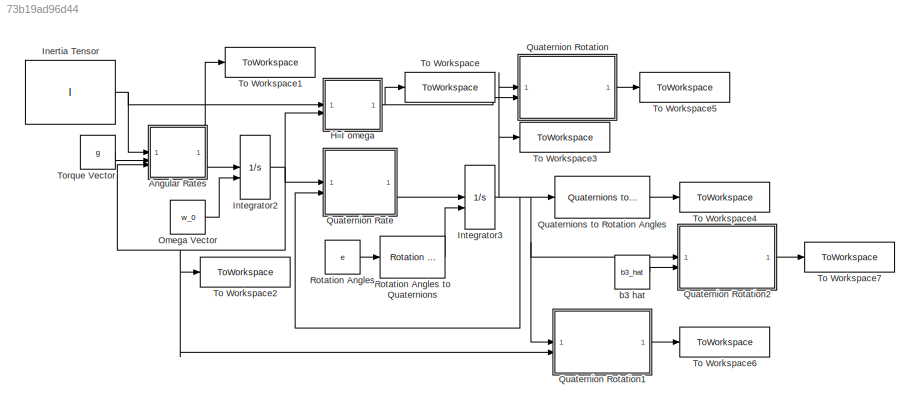
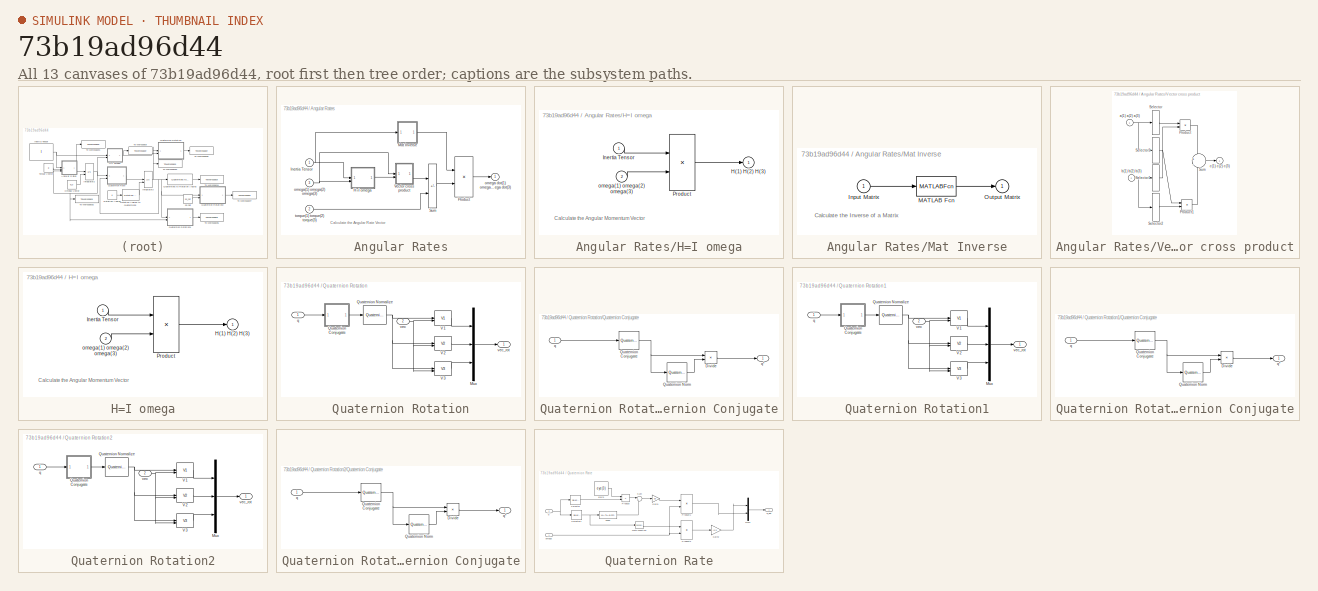
[diagram: thumbnail index - all 13 canvases of the model, root first then tree order]
MODEL slx_73b19ad96d44
KIND model
CONFIG AbsTol = auto
CONFIG EnableMultiTasking = on
CONFIG FixedStep = 0.01
CONFIG MaxStep = 0.01
CONFIG MinStep = auto
CONFIG RelTol = 1e-3
CONFIG SampleTimeConstraint = Unconstrained
CONFIG SolverName = FixedStepAuto
CONFIG StartTime = 0.0
CONFIG StopTime = 45
BLOCK [SubSystem] Angular Rates
BLOCK [SubSystem] Angular Rates/H=I omega
BLOCK [Outport] Angular Rates/H=I omega/H(1) H(2) H(3)
  InitialOutput = 0
BLOCK [Inport] Angular Rates/H=I omega/Inertia Tensor
BLOCK [Product] Angular Rates/H=I omega/Product
  InputSameDT = on
  Multiplication = Matrix(*)
  OutDataTypeStr = Inherit: Same as first input
  RndMeth = Zero
  SaturateOnIntegerOverflow = on
BLOCK [Inport] Angular Rates/H=I omega/omega(1) omega(2) omega(3)
  Port = 2
BLOCK [Inport] Angular Rates/Inertia Tensor
BLOCK [SubSystem] Angular Rates/Mat Inverse
BLOCK [Inport] Angular Rates/Mat Inverse/Input Matrix
BLOCK [MATLABFcn] Angular Rates/Mat Inverse/MATLAB Fcn
  MATLABFcn = inv([u(1,1) u(1,2) u(1,3);u(2,1) u(2,2) u(2,3);u(3,1) u(3,2) u(3,3)])
  Output1D = off
BLOCK [Outport] Angular Rates/Mat Inverse/Output Matrix
  InitialOutput = 0
BLOCK [Product] Angular Rates/Product
  InputSameDT = on
  Multiplication = Matrix(*)
  OutDataTypeStr = Inherit: Same as first input
  RndMeth = Zero
  SaturateOnIntegerOverflow = on
BLOCK [Sum] Angular Rates/Sum
  IconShape = rectangular
  InputSameDT = on
  Inputs = -+
  OutDataTypeStr = Inherit: Same as first input
  SaturateOnIntegerOverflow = on
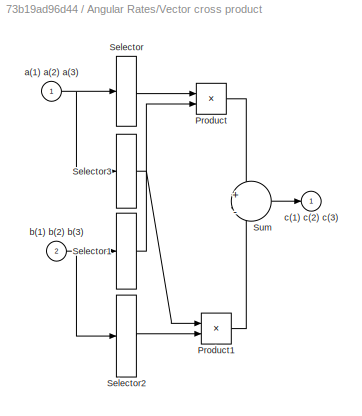
BLOCK [SubSystem] Angular Rates/Vector cross product
BLOCK [Product] Angular Rates/Vector cross product/Product
  InputSameDT = on
  OutDataTypeStr = Inherit: Same as first input
  RndMeth = Zero
  SaturateOnIntegerOverflow = on
BLOCK [Product] Angular Rates/Vector cross product/Product1
  InputSameDT = on
  OutDataTypeStr = Inherit: Same as first input
  RndMeth = Zero
  SaturateOnIntegerOverflow = on
BLOCK [Selector] Angular Rates/Vector cross product/Selector
  IndexOptions = Index vector (dialog)
  Indices = [2 3 1]
  InputPortWidth = 3
  OutputSizes = 1
BLOCK [Selector] Angular Rates/Vector cross product/Selector1
  IndexOptions = Index vector (dialog)
  Indices = [3 1 2]
  InputPortWidth = 3
  OutputSizes = 1
BLOCK [Selector] Angular Rates/Vector cross product/Selector2
  IndexOptions = Index vector (dialog)
  Indices = [2 3 1]
  InputPortWidth = 3
  OutputSizes = 1
BLOCK [Selector] Angular Rates/Vector cross product/Selector3
  IndexOptions = Index vector (dialog)
  Indices = [3 1 2]
  InputPortWidth = 3
  OutputSizes = 1
BLOCK [Sum] Angular Rates/Vector cross product/Sum
  InputSameDT = on
  Inputs = +|-
  OutDataTypeStr = Inherit: Same as first input
  SaturateOnIntegerOverflow = on
BLOCK [Inport] Angular Rates/Vector cross product/a(1) a(2) a(3)
BLOCK [Inport] Angular Rates/Vector cross product/b(1) b(2) b(3)
  Port = 2
BLOCK [Outport] Angular Rates/Vector cross product/c(1) c(2) c(3)
  InitialOutput = 0
BLOCK [Outport] Angular Rates/omega dot(1) omega dot(2) omega dot(3)
  InitialOutput = 0
BLOCK [Inport] Angular Rates/omega(1) omega(2) omega(3)
  Port = 3
BLOCK [Inport] Angular Rates/torque(1) torque(2) torque(3)
  Port = 2
BLOCK [SubSystem] H=I omega
BLOCK [Outport] H=I omega/H(1) H(2) H(3)
  InitialOutput = 0
BLOCK [Inport] H=I omega/Inertia Tensor
BLOCK [Product] H=I omega/Product
  InputSameDT = on
  Multiplication = Matrix(*)
  OutDataTypeStr = Inherit: Same as first input
  RndMeth = Zero
  SaturateOnIntegerOverflow = on
BLOCK [Inport] H=I omega/omega(1) omega(2) omega(3)
  Port = 2
BLOCK [Constant] Inertia Tensor
  Value = I
  VectorParams1D = off
BLOCK [Integrator] Integrator2
  InitialCondition = [0;0;0]
  InitialConditionSource = external
BLOCK [Integrator] Integrator3
  InitialCondition = [0;0;0]
  InitialConditionSource = external
BLOCK [Constant] Omega Vector
  Value = w_0
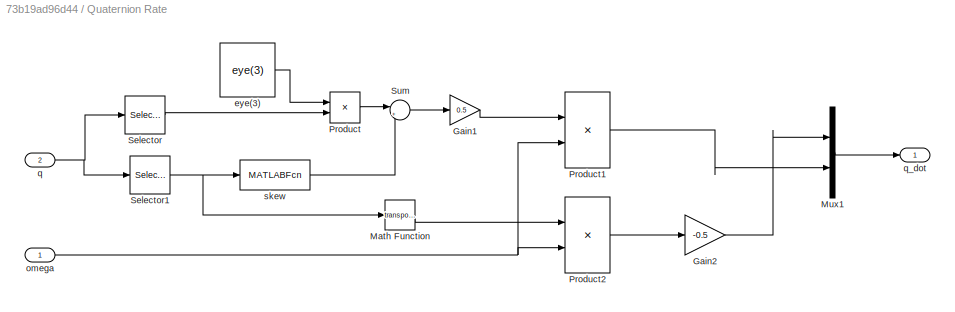
BLOCK [SubSystem] Quaternion Rate
BLOCK [Gain] Quaternion Rate/Gain1
  Gain = 0.5
BLOCK [Gain] Quaternion Rate/Gain2
  Gain = -0.5
BLOCK [Math] Quaternion Rate/Math Function
  Operator = transpose
BLOCK [Mux] Quaternion Rate/Mux1
  DisplayOption = bar
  Inputs = 2
BLOCK [Product] Quaternion Rate/Product
BLOCK [Product] Quaternion Rate/Product1
  Multiplication = Matrix(*)
BLOCK [Product] Quaternion Rate/Product2
  Multiplication = Matrix(*)
BLOCK [Selector] Quaternion Rate/Selector
  IndexOptions = Index vector (dialog)
  Indices = [1]
  InputPortWidth = 4
  OutputSizes = 1
BLOCK [Selector] Quaternion Rate/Selector1
  IndexOptions = Index vector (dialog)
  Indices = [2 3 4]
  InputPortWidth = 4
  OutputSizes = 1
BLOCK [Sum] Quaternion Rate/Sum
  Inputs = |++
BLOCK [Constant] Quaternion Rate/eye(3)
  Value = eye(3)
BLOCK [Inport] Quaternion Rate/omega
BLOCK [Inport] Quaternion Rate/q
  Port = 2
BLOCK [Outport] Quaternion Rate/q_dot
BLOCK [MATLABFcn] Quaternion Rate/skew
  MATLABFcn = [0,-u(3),u(2);u(3),0,-u(1);-u(2),u(1),0]
  Output1D = off
BLOCK [SubSystem] Quaternion Rotation
BLOCK [Mux] Quaternion Rotation/Mux
  DisplayOption = bar
  Inputs = 3
BLOCK [SubSystem] Quaternion Rotation/Quaternion Conjugate
  ShowPortLabels = FromPortBlockName
BLOCK [Product] Quaternion Rotation/Quaternion Conjugate/Divide
  Inputs = */
BLOCK [Reference] Quaternion Rotation/Quaternion Conjugate/Quaternion Conjugate  REF=aerolibutil/Quaternion
Conjugate
  SourceBlock = aerolibutil/Quaternion\nConjugate
  SourceType = Quaternion Conjugate
BLOCK [Reference] Quaternion Rotation/Quaternion Conjugate/Quaternion Norm  REF=sharedutil/Quaternion
Norm
  SourceBlock = sharedutil/Quaternion\nNorm
  SourceType = Quaternion Norm
BLOCK [Inport] Quaternion Rotation/Quaternion Conjugate/q
BLOCK [Outport] Quaternion Rotation/Quaternion Conjugate/q*
BLOCK [Reference] Quaternion Rotation/Quaternion Normalize  REF=sharedutil/Quaternion
Normalize
  SourceBlock = sharedutil/Quaternion\nNormalize
  SourceType = Quaternion Normalize
BLOCK [Reference] Quaternion Rotation/V1  REF=aerolibutil/Quaternion
Rotation/V1
  SourceBlock = aerolibutil/Quaternion\nRotation/V1
  SourceType = SubSystem
BLOCK [Reference] Quaternion Rotation/V2  REF=aerolibutil/Quaternion
Rotation/V2
  SourceBlock = aerolibutil/Quaternion\nRotation/V2
  SourceType = SubSystem
BLOCK [Reference] Quaternion Rotation/V3  REF=aerolibutil/Quaternion
Rotation/V3
  SourceBlock = aerolibutil/Quaternion\nRotation/V3
  SourceType = SubSystem
BLOCK [Inport] Quaternion Rotation/q
  Unit = 1
BLOCK [Inport] Quaternion Rotation/vec
  Port = 2
BLOCK [Outport] Quaternion Rotation/vec_rot
  VectorParamsAs1DForOutWhenUnconnected = off
BLOCK [SubSystem] Quaternion Rotation1
BLOCK [Mux] Quaternion Rotation1/Mux
  DisplayOption = bar
  Inputs = 3
BLOCK [SubSystem] Quaternion Rotation1/Quaternion Conjugate
  ShowPortLabels = FromPortBlockName
BLOCK [Product] Quaternion Rotation1/Quaternion Conjugate/Divide
  Inputs = */
BLOCK [Reference] Quaternion Rotation1/Quaternion Conjugate/Quaternion Conjugate  REF=aerolibutil/Quaternion
Conjugate
  SourceBlock = aerolibutil/Quaternion\nConjugate
  SourceType = Quaternion Conjugate
BLOCK [Reference] Quaternion Rotation1/Quaternion Conjugate/Quaternion Norm  REF=sharedutil/Quaternion
Norm
  SourceBlock = sharedutil/Quaternion\nNorm
  SourceType = Quaternion Norm
BLOCK [Inport] Quaternion Rotation1/Quaternion Conjugate/q
BLOCK [Outport] Quaternion Rotation1/Quaternion Conjugate/q*
BLOCK [Reference] Quaternion Rotation1/Quaternion Normalize  REF=sharedutil/Quaternion
Normalize
  SourceBlock = sharedutil/Quaternion\nNormalize
  SourceType = Quaternion Normalize
BLOCK [Reference] Quaternion Rotation1/V1  REF=aerolibutil/Quaternion
Rotation/V1
  SourceBlock = aerolibutil/Quaternion\nRotation/V1
  SourceType = SubSystem
BLOCK [Reference] Quaternion Rotation1/V2  REF=aerolibutil/Quaternion
Rotation/V2
  SourceBlock = aerolibutil/Quaternion\nRotation/V2
  SourceType = SubSystem
BLOCK [Reference] Quaternion Rotation1/V3  REF=aerolibutil/Quaternion
Rotation/V3
  SourceBlock = aerolibutil/Quaternion\nRotation/V3
  SourceType = SubSystem
BLOCK [Inport] Quaternion Rotation1/q
  Unit = 1
BLOCK [Inport] Quaternion Rotation1/vec
  Port = 2
BLOCK [Outport] Quaternion Rotation1/vec_rot
  VectorParamsAs1DForOutWhenUnconnected = off
BLOCK [SubSystem] Quaternion Rotation2
BLOCK [Mux] Quaternion Rotation2/Mux
  DisplayOption = bar
  Inputs = 3
BLOCK [SubSystem] Quaternion Rotation2/Quaternion Conjugate
  ShowPortLabels = FromPortBlockName
BLOCK [Product] Quaternion Rotation2/Quaternion Conjugate/Divide
  Inputs = */
BLOCK [Reference] Quaternion Rotation2/Quaternion Conjugate/Quaternion Conjugate  REF=aerolibutil/Quaternion
Conjugate
  SourceBlock = aerolibutil/Quaternion\nConjugate
  SourceType = Quaternion Conjugate
BLOCK [Reference] Quaternion Rotation2/Quaternion Conjugate/Quaternion Norm  REF=sharedutil/Quaternion
Norm
  SourceBlock = sharedutil/Quaternion\nNorm
  SourceType = Quaternion Norm
BLOCK [Inport] Quaternion Rotation2/Quaternion Conjugate/q
BLOCK [Outport] Quaternion Rotation2/Quaternion Conjugate/q*
BLOCK [Reference] Quaternion Rotation2/Quaternion Normalize  REF=sharedutil/Quaternion
Normalize
  SourceBlock = sharedutil/Quaternion\nNormalize
  SourceType = Quaternion Normalize
BLOCK [Reference] Quaternion Rotation2/V1  REF=aerolibutil/Quaternion
Rotation/V1
  SourceBlock = aerolibutil/Quaternion\nRotation/V1
  SourceType = SubSystem
BLOCK [Reference] Quaternion Rotation2/V2  REF=aerolibutil/Quaternion
Rotation/V2
  SourceBlock = aerolibutil/Quaternion\nRotation/V2
  SourceType = SubSystem
BLOCK [Reference] Quaternion Rotation2/V3  REF=aerolibutil/Quaternion
Rotation/V3
  SourceBlock = aerolibutil/Quaternion\nRotation/V3
  SourceType = SubSystem
BLOCK [Inport] Quaternion Rotation2/q
  Unit = 1
BLOCK [Inport] Quaternion Rotation2/vec
  Port = 2
BLOCK [Outport] Quaternion Rotation2/vec_rot
  VectorParamsAs1DForOutWhenUnconnected = off
BLOCK [Reference] Quaternions to Rotation Angles  REF=sharedtransform/Quaternions to Rotation Angles
  AttributesFormatString = Rotation Order: %<rotationOrder>
  SourceBlock = sharedtransform/Quaternions to Rotation Angles
  SourceType = Quat2Ang
BLOCK [Constant] Rotation Angles
  Value = e
BLOCK [Reference] Rotation Angles to Quaternions  REF=sharedtransform/Rotation Angles to Quaternions
  AttributesFormatString = Rotation Order: %<rotationOrder>
  SourceBlock = sharedtransform/Rotation Angles to Quaternions
  SourceType = Ang2Quat
BLOCK [ToWorkspace] To Workspace
  FixptAsFi = on
  MaxDataPoints = inf
  NameLocation = right
  SampleTime = -1
  VariableName = ang_mom
BLOCK [ToWorkspace] To Workspace1
  FixptAsFi = on
  MaxDataPoints = inf
  NameLocation = right
  SampleTime = -1
  VariableName = alpha
BLOCK [ToWorkspace] To Workspace2
  FixptAsFi = on
  MaxDataPoints = inf
  NameLocation = right
  SampleTime = -1
  VariableName = omega
BLOCK [ToWorkspace] To Workspace3
  FixptAsFi = on
  MaxDataPoints = inf
  SampleTime = -1
  VariableName = q
BLOCK [ToWorkspace] To Workspace4
  FixptAsFi = on
  MaxDataPoints = inf
  SampleTime = -1
  VariableName = angle_out
BLOCK [ToWorkspace] To Workspace5
  FixptAsFi = on
  MaxDataPoints = inf
  SampleTime = -1
  VariableName = ang_mom_inertial
BLOCK [ToWorkspace] To Workspace6
  FixptAsFi = on
  MaxDataPoints = inf
  SampleTime = -1
  VariableName = omega_inertial
BLOCK [ToWorkspace] To Workspace7
  FixptAsFi = on
  MaxDataPoints = inf
  SampleTime = -1
  VariableName = b3hat_inertial
BLOCK [Constant] Torque Vector
  Value = g
BLOCK [Constant] b3 hat
  Value = b3_hat
ANNOTATION Angular Rates: Calculate the Angular Rate Vector
ANNOTATION Angular Rates/H=I omega: Calculate the Angular Momentum Vector
ANNOTATION Angular Rates/Mat Inverse: Calculate the Inverse of a Matrix
ANNOTATION H=I omega: Calculate the Angular Momentum Vector
LINE Angular Rates/H=I omega/Inertia Tensor:1 -> Angular Rates/H=I omega/Product:1
LINE Angular Rates/H=I omega/Product:1 -> Angular Rates/H=I omega/H(1) H(2) H(3):1
LINE Angular Rates/H=I omega/omega(1) omega(2) omega(3):1 -> Angular Rates/H=I omega/Product:2
LINE Angular Rates/H=I omega:1 -> Angular Rates/Vector cross product:2
NET Angular Rates/Inertia Tensor:1 -> Angular Rates/H=I omega:1, Angular Rates/Mat Inverse:1
LINE Angular Rates/Mat Inverse/Input Matrix:1 -> Angular Rates/Mat Inverse/MATLAB Fcn:1
LINE Angular Rates/Mat Inverse/MATLAB Fcn:1 -> Angular Rates/Mat Inverse/Output Matrix:1
LINE Angular Rates/Mat Inverse:1 -> Angular Rates/Product:1
LINE Angular Rates/Product:1 -> Angular Rates/omega dot(1) omega dot(2) omega dot(3):1
LINE Angular Rates/Sum:1 -> Angular Rates/Product:2
LINE Angular Rates/Vector cross product/Product1:1 -> Angular Rates/Vector cross product/Sum:2
LINE Angular Rates/Vector cross product/Product:1 -> Angular Rates/Vector cross product/Sum:1
LINE Angular Rates/Vector cross product/Selector1:1 -> Angular Rates/Vector cross product/Product:2
LINE Angular Rates/Vector cross product/Selector2:1 -> Angular Rates/Vector cross product/Product1:2
LINE Angular Rates/Vector cross product/Selector3:1 -> Angular Rates/Vector cross product/Product1:1
LINE Angular Rates/Vector cross product/Selector:1 -> Angular Rates/Vector cross product/Product:1
LINE Angular Rates/Vector cross product/Sum:1 -> Angular Rates/Vector cross product/c(1) c(2) c(3):1
NET Angular Rates/Vector cross product/a(1) a(2) a(3):1 -> Angular Rates/Vector cross product/Selector3:1, Angular Rates/Vector cross product/Selector:1
NET Angular Rates/Vector cross product/b(1) b(2) b(3):1 -> Angular Rates/Vector cross product/Selector1:1, Angular Rates/Vector cross product/Selector2:1
LINE Angular Rates/Vector cross product:1 -> Angular Rates/Sum:1
NET Angular Rates/omega(1) omega(2) omega(3):1 -> Angular Rates/H=I omega:2, Angular Rates/Vector cross product:1
LINE Angular Rates/torque(1) torque(2) torque(3):1 -> Angular Rates/Sum:2
NET Angular Rates:1 -> Integrator2:1, To Workspace1:1
LINE H=I omega/Inertia Tensor:1 -> H=I omega/Product:1
LINE H=I omega/Product:1 -> H=I omega/H(1) H(2) H(3):1
LINE H=I omega/omega(1) omega(2) omega(3):1 -> H=I omega/Product:2
NET H=I omega:1 -> Quaternion Rotation:2, To Workspace:1
NET Inertia Tensor:1 -> Angular Rates:1, H=I omega:1
NET Integrator2:1 -> Angular Rates:3, H=I omega:2, Quaternion Rate:1, Quaternion Rotation1:2, To Workspace2:1
NET Integrator3:1 -> Quaternion Rate:2, Quaternion Rotation1:1, Quaternion Rotation2:1, Quaternion Rotation:1, Quaternions to Rotation Angles:1, To Workspace3:1
LINE Omega Vector:1 -> Integrator2:2
LINE Quaternion Rate/Gain1:1 -> Quaternion Rate/Product1:1
LINE Quaternion Rate/Gain2:1 -> Quaternion Rate/Mux1:1
LINE Quaternion Rate/Math Function:1 -> Quaternion Rate/Product2:1
LINE Quaternion Rate/Mux1:1 -> Quaternion Rate/q_dot:1
LINE Quaternion Rate/Product1:1 -> Quaternion Rate/Mux1:2
LINE Quaternion Rate/Product2:1 -> Quaternion Rate/Gain2:1
LINE Quaternion Rate/Product:1 -> Quaternion Rate/Sum:1
NET Quaternion Rate/Selector1:1 -> Quaternion Rate/Math Function:1, Quaternion Rate/skew:1
LINE Quaternion Rate/Selector:1 -> Quaternion Rate/Product:2
LINE Quaternion Rate/Sum:1 -> Quaternion Rate/Gain1:1
LINE Quaternion Rate/eye(3):1 -> Quaternion Rate/Product:1
NET Quaternion Rate/omega:1 -> Quaternion Rate/Product1:2, Quaternion Rate/Product2:2
NET Quaternion Rate/q:1 -> Quaternion Rate/Selector1:1, Quaternion Rate/Selector:1
LINE Quaternion Rate/skew:1 -> Quaternion Rate/Sum:2
LINE Quaternion Rate:1 -> Integrator3:1
LINE Quaternion Rotation/Mux:1 -> Quaternion Rotation/vec_rot:1
LINE Quaternion Rotation/Quaternion Conjugate/Divide:1 -> Quaternion Rotation/Quaternion Conjugate/q*:1
NET Quaternion Rotation/Quaternion Conjugate/Quaternion Conjugate:1 -> Quaternion Rotation/Quaternion Conjugate/Divide:1, Quaternion Rotation/Quaternion Conjugate/Quaternion Norm:1
LINE Quaternion Rotation/Quaternion Conjugate/Quaternion Norm:1 -> Quaternion Rotation/Quaternion Conjugate/Divide:2
LINE Quaternion Rotation/Quaternion Conjugate/q:1 -> Quaternion Rotation/Quaternion Conjugate/Quaternion Conjugate:1
LINE Quaternion Rotation/Quaternion Conjugate:1 -> Quaternion Rotation/Quaternion Normalize:1
NET Quaternion Rotation/Quaternion Normalize:1 -> Quaternion Rotation/V1:1, Quaternion Rotation/V2:1, Quaternion Rotation/V3:1
LINE Quaternion Rotation/V1:1 -> Quaternion Rotation/Mux:1
LINE Quaternion Rotation/V2:1 -> Quaternion Rotation/Mux:2
LINE Quaternion Rotation/V3:1 -> Quaternion Rotation/Mux:3
LINE Quaternion Rotation/q:1 -> Quaternion Rotation/Quaternion Conjugate:1
NET Quaternion Rotation/vec:1 -> Quaternion Rotation/V1:2, Quaternion Rotation/V2:2, Quaternion Rotation/V3:2
LINE Quaternion Rotation1/Mux:1 -> Quaternion Rotation1/vec_rot:1
LINE Quaternion Rotation1/Quaternion Conjugate/Divide:1 -> Quaternion Rotation1/Quaternion Conjugate/q*:1
NET Quaternion Rotation1/Quaternion Conjugate/Quaternion Conjugate:1 -> Quaternion Rotation1/Quaternion Conjugate/Divide:1, Quaternion Rotation1/Quaternion Conjugate/Quaternion Norm:1
LINE Quaternion Rotation1/Quaternion Conjugate/Quaternion Norm:1 -> Quaternion Rotation1/Quaternion Conjugate/Divide:2
LINE Quaternion Rotation1/Quaternion Conjugate/q:1 -> Quaternion Rotation1/Quaternion Conjugate/Quaternion Conjugate:1
LINE Quaternion Rotation1/Quaternion Conjugate:1 -> Quaternion Rotation1/Quaternion Normalize:1
NET Quaternion Rotation1/Quaternion Normalize:1 -> Quaternion Rotation1/V1:1, Quaternion Rotation1/V2:1, Quaternion Rotation1/V3:1
LINE Quaternion Rotation1/V1:1 -> Quaternion Rotation1/Mux:1
LINE Quaternion Rotation1/V2:1 -> Quaternion Rotation1/Mux:2
LINE Quaternion Rotation1/V3:1 -> Quaternion Rotation1/Mux:3
LINE Quaternion Rotation1/q:1 -> Quaternion Rotation1/Quaternion Conjugate:1
NET Quaternion Rotation1/vec:1 -> Quaternion Rotation1/V1:2, Quaternion Rotation1/V2:2, Quaternion Rotation1/V3:2
LINE Quaternion Rotation1:1 -> To Workspace6:1
LINE Quaternion Rotation2/Mux:1 -> Quaternion Rotation2/vec_rot:1
LINE Quaternion Rotation2/Quaternion Conjugate/Divide:1 -> Quaternion Rotation2/Quaternion Conjugate/q*:1
NET Quaternion Rotation2/Quaternion Conjugate/Quaternion Conjugate:1 -> Quaternion Rotation2/Quaternion Conjugate/Divide:1, Quaternion Rotation2/Quaternion Conjugate/Quaternion Norm:1
LINE Quaternion Rotation2/Quaternion Conjugate/Quaternion Norm:1 -> Quaternion Rotation2/Quaternion Conjugate/Divide:2
LINE Quaternion Rotation2/Quaternion Conjugate/q:1 -> Quaternion Rotation2/Quaternion Conjugate/Quaternion Conjugate:1
LINE Quaternion Rotation2/Quaternion Conjugate:1 -> Quaternion Rotation2/Quaternion Normalize:1
NET Quaternion Rotation2/Quaternion Normalize:1 -> Quaternion Rotation2/V1:1, Quaternion Rotation2/V2:1, Quaternion Rotation2/V3:1
LINE Quaternion Rotation2/V1:1 -> Quaternion Rotation2/Mux:1
LINE Quaternion Rotation2/V2:1 -> Quaternion Rotation2/Mux:2
LINE Quaternion Rotation2/V3:1 -> Quaternion Rotation2/Mux:3
LINE Quaternion Rotation2/q:1 -> Quaternion Rotation2/Quaternion Conjugate:1
NET Quaternion Rotation2/vec:1 -> Quaternion Rotation2/V1:2, Quaternion Rotation2/V2:2, Quaternion Rotation2/V3:2
LINE Quaternion Rotation2:1 -> To Workspace7:1
LINE Quaternion Rotation:1 -> To Workspace5:1
LINE Quaternions to Rotation Angles:1 -> To Workspace4:1
LINE Rotation Angles to Quaternions:1 -> Integrator3:2
LINE Rotation Angles:1 -> Rotation Angles to Quaternions:1
LINE Torque Vector:1 -> Angular Rates:2
LINE b3 hat:1 -> Quaternion Rotation2:2
note: NET lines group one-source signal fan-out (src -> all destinations, sorted); 1:1 wires keep LINE
